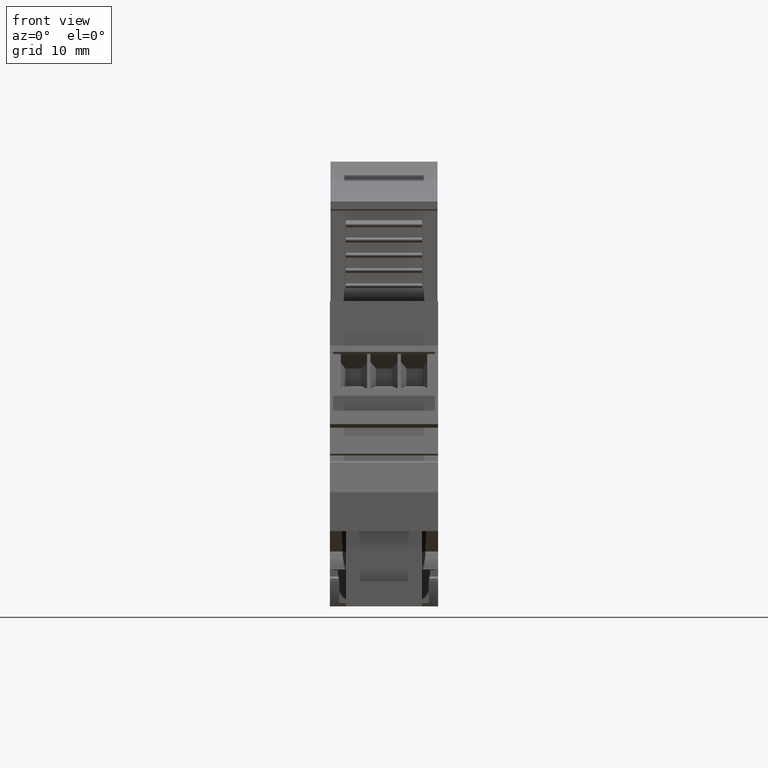
[diagram: clean part render]
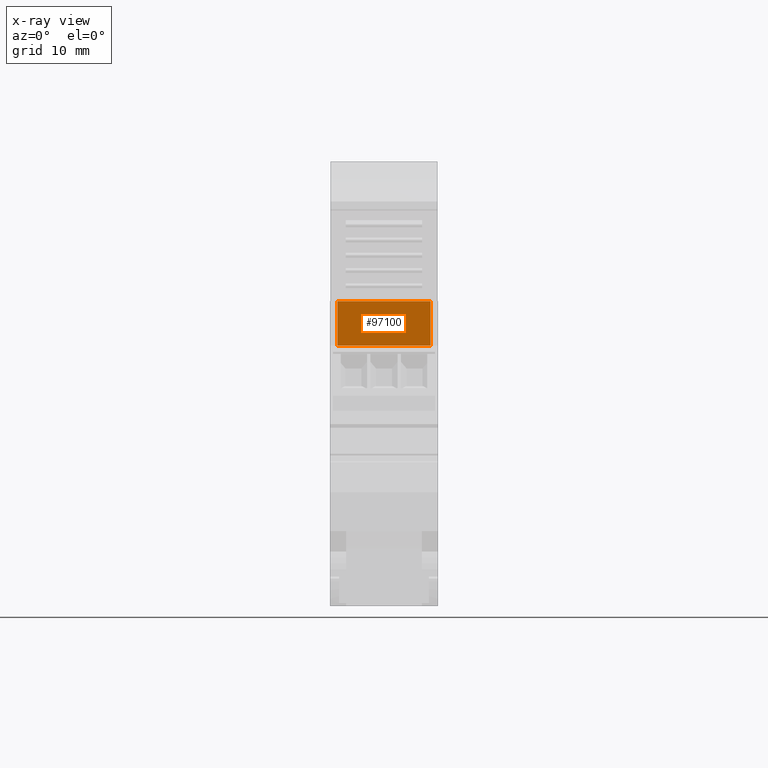
[diagram: x-ray — body ghosted, one internal face saturated and labeled with its STEP entity id]
A machine part, front view, then the same camera in x-ray: the body is ghosted and one INTERNAL B-rep face — a face not visible from any outside direction — is saturated and labeled: STEP entity #97100.
In plain terms, the highlighted planar face has unit normal (0, 1, -0).
Its self-contained STEP definition (entity closure, byte-faithful):
#4050=CARTESIAN_POINT('',(96.9693703744467,65.0562740524421,
-49.9650000000915));
#4060=DIRECTION('',(0.,-1.,0.));
#4070=VECTOR('',#4060,1.);
#4080=LINE('',#4050,#4070);
#4090=CARTESIAN_POINT('',(96.9693703744467,65.0562740524421,
-49.9650000000915));
#4100=VERTEX_POINT('',#4090);
#4110=CARTESIAN_POINT('',(96.9693703744467,57.8062740524415,
-49.9650000000915));
#4120=VERTEX_POINT('',#4110);
#4130=EDGE_CURVE('',#4100,#4120,#4080,.T.);
#96800=CARTESIAN_POINT('',(96.9693703744467,65.0562740524421,
-49.9650000000915));
#96810=DIRECTION('',(-1.,-0.,-0.));
#96820=DIRECTION('',(0.,0.,-1.));
#96830=AXIS2_PLACEMENT_3D('',#96800,#96810,#96820);
#96840=PLANE('',#96830);
#96850=CARTESIAN_POINT('',(96.9693703744467,65.0562740524421,
-34.7350000000915));
#96860=DIRECTION('',(0.,-1.,0.));
#96870=VECTOR('',#96860,1.);
#96880=LINE('',#96850,#96870);
#96890=CARTESIAN_POINT('',(96.9693703744467,65.0562740524421,
-34.7350000000915));
#96900=VERTEX_POINT('',#96890);
#96910=CARTESIAN_POINT('',(96.9693703744467,57.8062740524415,
-34.7350000000915));
#96920=VERTEX_POINT('',#96910);
#96930=EDGE_CURVE('',#96900,#96920,#96880,.T.);
#96940=ORIENTED_EDGE('',*,*,#96930,.F.);
#96950=CARTESIAN_POINT('',(96.9693703744467,57.8062740524415,
-41.3000000000924));
#96960=DIRECTION('',(0.,3.15544362088405E-30,-1.));
#96970=VECTOR('',#96960,1.);
#96980=LINE('',#96950,#96970);
#96990=EDGE_CURVE('',#96920,#4120,#96980,.T.);
#97000=ORIENTED_EDGE('',*,*,#96990,.F.);
#97010=ORIENTED_EDGE('',*,*,#4130,.T.);
#97020=CARTESIAN_POINT('',(96.9693703744467,65.0562740524421,
-41.3000000000924));
#97030=DIRECTION('',(0.,0.,-1.));
#97040=VECTOR('',#97030,1.);
#97050=LINE('',#97020,#97040);
#97060=EDGE_CURVE('',#96900,#4100,#97050,.T.);
#97070=ORIENTED_EDGE('',*,*,#97060,.T.);
#97080=EDGE_LOOP('',(#97070,#97010,#97000,#96940));
#97090=FACE_OUTER_BOUND('',#97080,.T.);
#97100=ADVANCED_FACE('',(#97090),#96840,.T.);